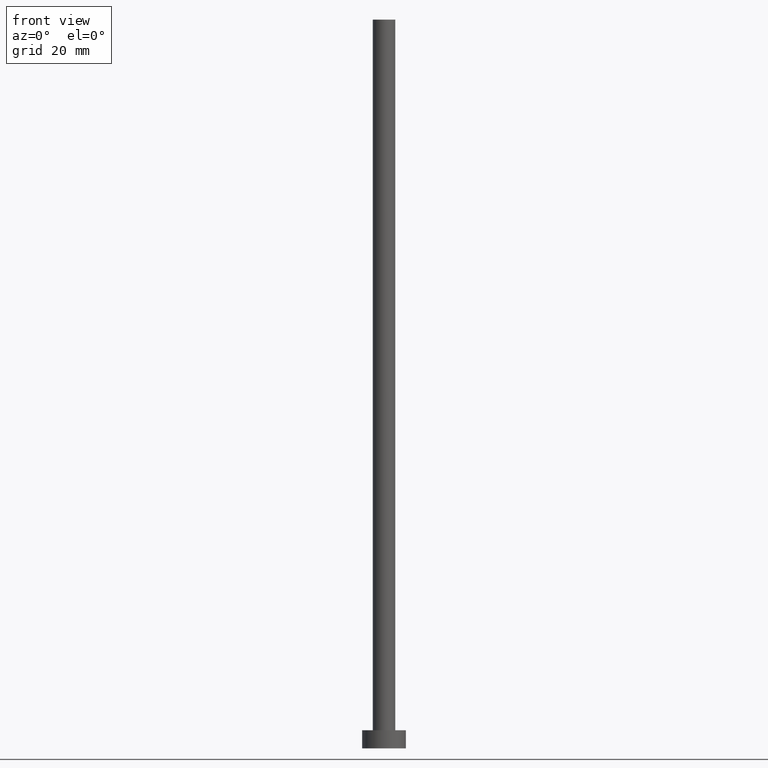
[diagram: clean part render]
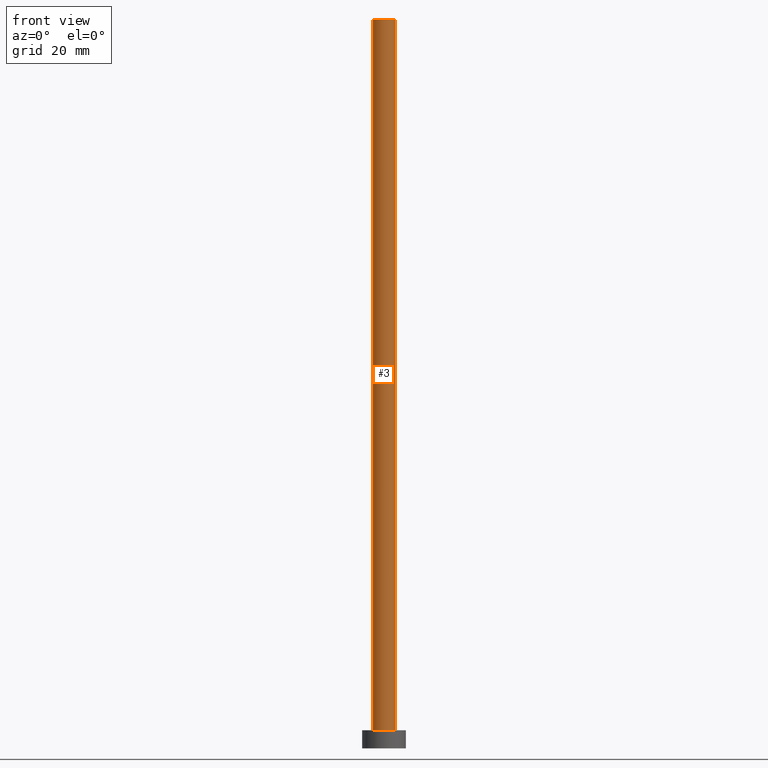
[diagram: same view with one face highlighted and labeled with its STEP entity id]
A machine part, front view. The second image highlights one B-rep face of the part: STEP entity #3.
In plain terms, the highlighted cylindrical surface (edge-blend (fillet) strip) has radius 3.1 mm, axis along (-0, -0, -1).
Its self-contained STEP definition (entity closure, byte-faithful):
#1 = VERTEX_POINT ( 'NONE', #45 ) ;
#2 = FACE_OUTER_BOUND ( 'NONE', #166, .T. ) ;
#3 = ADVANCED_FACE ( 'NONE', ( #2 ), #69, .T. ) ;
#4 = VERTEX_POINT ( 'NONE', #49 ) ;
#7 = DIRECTION ( 'NONE',  ( 1.000000000000000000, 0.000000000000000000, 0.000000000000000000 ) ) ;
#12 = CARTESIAN_POINT ( 'NONE',  ( -3.100000000000000089, 0.000000000000000000, 5.000000000000000000 ) ) ;
#27 = DIRECTION ( 'NONE',  ( 0.000000000000000000, 0.000000000000000000, 1.000000000000000000 ) ) ;
#31 = DIRECTION ( 'NONE',  ( 0.000000000000000000, 0.000000000000000000, 1.000000000000000000 ) ) ;
#35 = CIRCLE ( 'NONE', #238, 3.100000000000000089 ) ;
#44 = VECTOR ( 'NONE', #192, 1000.000000000000000 ) ;
#45 = CARTESIAN_POINT ( 'NONE',  ( 3.100000000000000089, 3.796405077356794918E-16, 5.000000000000000000 ) ) ;
#49 = CARTESIAN_POINT ( 'NONE',  ( -3.100000000000000089, 0.000000000000000000, 200.0000000000000000 ) ) ;
#56 = CARTESIAN_POINT ( 'NONE',  ( 0.000000000000000000, 0.000000000000000000, 5.000000000000000000 ) ) ;
#67 = DIRECTION ( 'NONE',  ( -0.000000000000000000, -0.000000000000000000, -1.000000000000000000 ) ) ;
#69 = CYLINDRICAL_SURFACE ( 'NONE', #158, 3.100000000000000089 ) ;
#71 = LINE ( 'NONE', #111, #44 ) ;
#80 = VECTOR ( 'NONE', #116, 1000.000000000000000 ) ;
#81 = ORIENTED_EDGE ( 'NONE', *, *, #182, .T. ) ;
#88 = CARTESIAN_POINT ( 'NONE',  ( 0.000000000000000000, 0.000000000000000000, 200.0000000000000000 ) ) ;
#91 = CARTESIAN_POINT ( 'NONE',  ( 0.000000000000000000, 0.000000000000000000, 200.0000000000000000 ) ) ;
#94 = CARTESIAN_POINT ( 'NONE',  ( 3.100000000000000089, 3.796405077356794918E-16, 200.0000000000000000 ) ) ;
#111 = CARTESIAN_POINT ( 'NONE',  ( 3.100000000000000089, 3.796405077356794918E-16, 200.0000000000000000 ) ) ;
#116 = DIRECTION ( 'NONE',  ( -0.000000000000000000, -0.000000000000000000, -1.000000000000000000 ) ) ;
#122 = VERTEX_POINT ( 'NONE', #12 ) ;
#129 = ORIENTED_EDGE ( 'NONE', *, *, #225, .F. ) ;
#152 = LINE ( 'NONE', #205, #80 ) ;
#158 = AXIS2_PLACEMENT_3D ( 'NONE', #88, #67, #189 ) ;
#166 = EDGE_LOOP ( 'NONE', ( #187, #129, #81, #169 ) ) ;
#169 = ORIENTED_EDGE ( 'NONE', *, *, #222, .T. ) ;
#182 = EDGE_CURVE ( 'NONE', #4, #122, #152, .T. ) ;
#187 = ORIENTED_EDGE ( 'NONE', *, *, #241, .F. ) ;
#189 = DIRECTION ( 'NONE',  ( -1.000000000000000000, 0.000000000000000000, 0.000000000000000000 ) ) ;
#192 = DIRECTION ( 'NONE',  ( -0.000000000000000000, -0.000000000000000000, -1.000000000000000000 ) ) ;
#201 = VERTEX_POINT ( 'NONE', #94 ) ;
#205 = CARTESIAN_POINT ( 'NONE',  ( -3.100000000000000089, 0.000000000000000000, 200.0000000000000000 ) ) ;
#220 = AXIS2_PLACEMENT_3D ( 'NONE', #91, #31, #245 ) ;
#222 = EDGE_CURVE ( 'NONE', #122, #1, #35, .T. ) ;
#225 = EDGE_CURVE ( 'NONE', #4, #201, #244, .T. ) ;
#238 = AXIS2_PLACEMENT_3D ( 'NONE', #56, #27, #7 ) ;
#241 = EDGE_CURVE ( 'NONE', #201, #1, #71, .T. ) ;
#244 = CIRCLE ( 'NONE', #220, 3.100000000000000089 ) ;
#245 = DIRECTION ( 'NONE',  ( 1.000000000000000000, 0.000000000000000000, 0.000000000000000000 ) ) ;